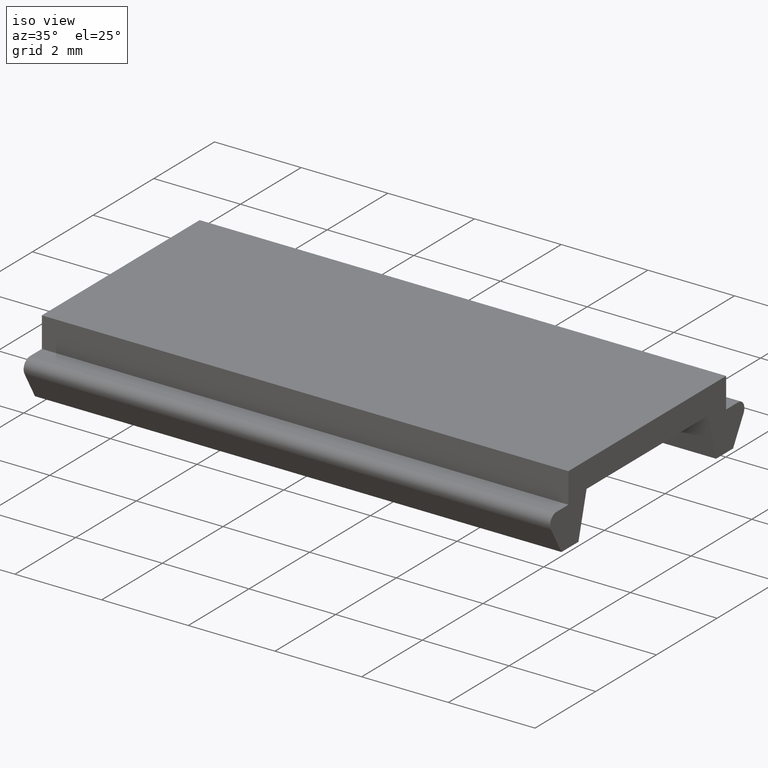
[diagram: clean part render]
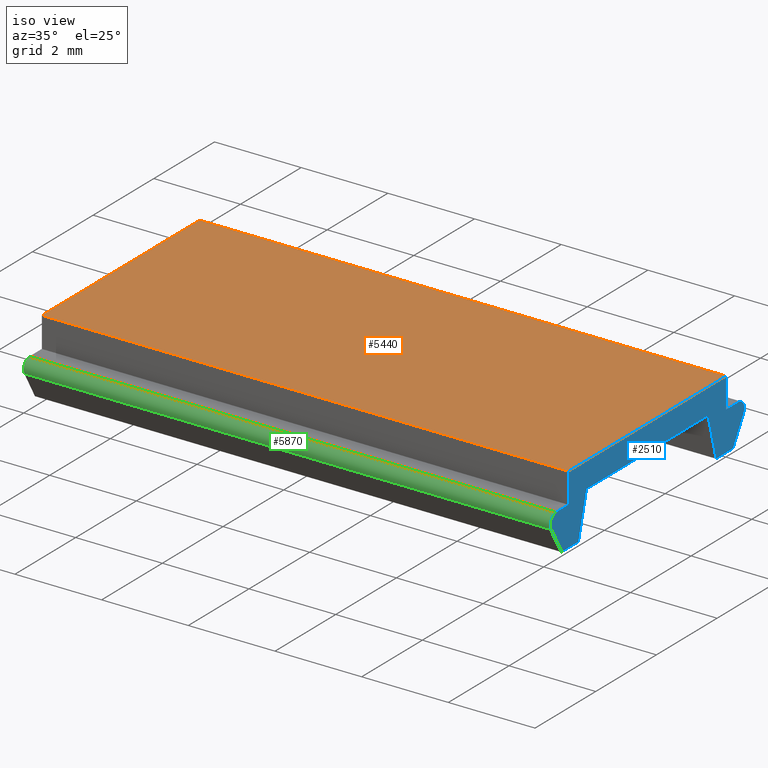
[diagram: same view with three faces highlighted in distinct colors, each labeled with its STEP entity id]
A machine part, iso view with three faces highlighted in distinct colors.
Their STEP definitions:

[orange] entity #5440 — the highlighted planar face has unit normal (-0, -0, -1).
#1020=CARTESIAN_POINT('',(0.598817962288082,-2.,1.59999999999953));
#1030=VERTEX_POINT('',#1020);
#1060=CARTESIAN_POINT('',(3.19881796228819,-2.,1.60000000000147));
#1070=DIRECTION('',(-1.,3.42113882891801E-49,-7.45070671825943E-13));
#1080=VECTOR('',#1070,1.);
#1090=LINE('',#1060,#1080);
#1100=CARTESIAN_POINT('',(5.79881796228829,-2.,1.6000000000034));
#1110=VERTEX_POINT('',#1100);
#1120=EDGE_CURVE('',#1110,#1030,#1090,.T.);
#1410=CARTESIAN_POINT('',(5.79881796228829,10.15,1.6000000000034));
#1420=VERTEX_POINT('',#1410);
#1450=CARTESIAN_POINT('',(3.19881796228819,10.15,1.60000000000147));
#1460=DIRECTION('',(-1.,3.42113882891801E-49,-7.45070671825943E-13));
#1470=VECTOR('',#1460,1.);
#1480=LINE('',#1450,#1470);
#1490=CARTESIAN_POINT('',(0.598817962288082,10.15,1.59999999999953));
#1500=VERTEX_POINT('',#1490);
#1510=EDGE_CURVE('',#1420,#1500,#1480,.T.);
#4430=CARTESIAN_POINT('',(5.79881796228829,-2.23985445467722E-48,
1.6000000000034));
#4440=DIRECTION('',(-3.42113882891801E-49,-1.,0.));
#4450=VECTOR('',#4440,1.);
#4460=LINE('',#4430,#4450);
#4470=EDGE_CURVE('',#1420,#1110,#4460,.T.);
#4930=CARTESIAN_POINT('',(0.598817962288082,-4.60862263639785E-49,
1.59999999999953));
#4940=DIRECTION('',(-3.42113882891801E-49,-1.,0.));
#4950=VECTOR('',#4940,1.);
#4960=LINE('',#4930,#4950);
#4970=EDGE_CURVE('',#1500,#1030,#4960,.T.);
#5330=CARTESIAN_POINT('',(0.798817962288231,-5.29285040218196E-49,
1.59999999999968));
#5340=DIRECTION('',(7.45070671825943E-13,-2.54899020567176E-61,-1.));
#5350=DIRECTION('',(-1.,3.42113882891801E-49,-7.45070671825943E-13));
#5360=AXIS2_PLACEMENT_3D('',#5330,#5340,#5350);
#5370=PLANE('',#5360);
#5380=ORIENTED_EDGE('',*,*,#1120,.F.);
#5390=ORIENTED_EDGE('',*,*,#4970,.T.);
#5400=ORIENTED_EDGE('',*,*,#1510,.T.);
#5410=ORIENTED_EDGE('',*,*,#4470,.F.);
#5420=EDGE_LOOP('',(#5410,#5400,#5390,#5380));
#5430=FACE_OUTER_BOUND('',#5420,.T.);
#5440=ADVANCED_FACE('',(#5430),#5370,.F.);

[blue] entity #2510 — the highlighted planar face has unit normal (-1, 0, 0).
#1300=CARTESIAN_POINT('',(3.25171605650094,10.15,1.30000000000155));
#1310=DIRECTION('',(-3.42113882891801E-49,-1.,0.));
#1320=DIRECTION('',(0.98480775301208,-3.36916404284913E-49,
0.173648177667655));
#1330=AXIS2_PLACEMENT_3D('',#1300,#1310,#1320);
#1340=PLANE('',#1330);
#1350=CARTESIAN_POINT('',(5.79881796228819,10.15,1.74912278860772));
#1360=DIRECTION('',(-6.94277968449342E-13,2.37522131592436E-61,1.));
#1370=VECTOR('',#1360,1.);
#1380=LINE('',#1350,#1370);
#1390=CARTESIAN_POINT('',(5.79881796228878,10.15,0.900000000003431));
#1400=VERTEX_POINT('',#1390);
#1410=CARTESIAN_POINT('',(5.79881796228829,10.15,1.6000000000034));
#1420=VERTEX_POINT('',#1410);
#1430=EDGE_CURVE('',#1400,#1420,#1380,.T.);
#1440=ORIENTED_EDGE('',*,*,#1430,.F.);
#1450=CARTESIAN_POINT('',(3.19881796228819,10.15,1.60000000000147));
#1460=DIRECTION('',(-1.,3.42113882891801E-49,-7.45070671825943E-13));
#1470=VECTOR('',#1460,1.);
#1480=LINE('',#1450,#1470);
#1490=CARTESIAN_POINT('',(0.598817962288082,10.15,1.59999999999953));
#1500=VERTEX_POINT('',#1490);
#1510=EDGE_CURVE('',#1420,#1500,#1480,.T.);
#1520=ORIENTED_EDGE('',*,*,#1510,.F.);
#1530=CARTESIAN_POINT('',(0.598817962288898,10.15,0.832222488919884));
#1540=DIRECTION('',(1.06326059068351E-12,-3.63756209204566E-61,-1.));
#1550=VECTOR('',#1540,1.);
#1560=LINE('',#1530,#1550);
#1570=CARTESIAN_POINT('',(0.598817962288826,10.15,0.900000000002109));
#1580=VERTEX_POINT('',#1570);
#1590=EDGE_CURVE('',#1500,#1580,#1560,.T.);
#1600=ORIENTED_EDGE('',*,*,#1590,.F.);
#1610=CARTESIAN_POINT('',(3.32224684878444,10.15,0.900000000002615));
#1620=DIRECTION('',(1.,-3.42113882891801E-49,1.85934601049098E-13));
#1630=VECTOR('',#1620,1.);
#1640=LINE('',#1610,#1630);
#1650=CARTESIAN_POINT('',(0.197642229317264,10.15,0.900000000002034));
#1660=VERTEX_POINT('',#1650);
#1670=EDGE_CURVE('',#1660,#1580,#1640,.T.);
#1680=ORIENTED_EDGE('',*,*,#1670,.T.);
#1690=CARTESIAN_POINT('',(0.197642395617414,10.15,0.701175470893366));
#1700=DIRECTION('',(-3.42113882891801E-49,-1.,0.));
#1710=DIRECTION('',(0.98480775301208,-3.36916404284913E-49,
0.173648177667655));
#1720=AXIS2_PLACEMENT_3D('',#1690,#1700,#1710);
#1730=CIRCLE('',#1720,0.198824529108738);
#1740=CARTESIAN_POINT('',(0.0256128815321159,10.15,0.601490769671017));
#1750=VERTEX_POINT('',#1740);
#1760=EDGE_CURVE('',#1660,#1750,#1730,.T.);
#1770=ORIENTED_EDGE('',*,*,#1760,.F.);
#1780=CARTESIAN_POINT('',(-0.0423296762644876,10.15,0.719170861624918));
#1790=DIRECTION('',(0.499999586206395,-1.71056799881364E-49,
-0.866025642688156));
#1800=VECTOR('',#1790,1.);
#1810=LINE('',#1780,#1800);
#1820=CARTESIAN_POINT('',(0.372883356121178,10.15,-2.78221889971064E-13)
);
#1830=VERTEX_POINT('',#1820);
#1840=EDGE_CURVE('',#1750,#1830,#1810,.T.);
#1850=ORIENTED_EDGE('',*,*,#1840,.F.);
#1860=CARTESIAN_POINT('',(3.48094113142325,10.15,-2.78221889971064E-13))
;
#1870=DIRECTION('',(1.,-3.42113882891801E-49,-2.77555756156289E-17));
#1880=VECTOR('',#1870,1.);
#1890=LINE('',#1860,#1880);
#1900=CARTESIAN_POINT('',(0.930670673464537,10.15,-2.77999845366139E-13)
);
#1910=VERTEX_POINT('',#1900);
#1920=EDGE_CURVE('',#1830,#1910,#1890,.T.);
#1930=ORIENTED_EDGE('',*,*,#1920,.F.);
#1940=CARTESIAN_POINT('',(1.18117862033904,10.15,0.934908385437702));
#1950=DIRECTION('',(0.258819045101854,-8.85455884861435E-50,
0.965925826289247));
#1960=VECTOR('',#1950,1.);
#1970=LINE('',#1940,#1960);
#1980=CARTESIAN_POINT('',(1.198619865895,10.15,1.00000000000001));
#1990=VERTEX_POINT('',#1980);
#2000=EDGE_CURVE('',#1910,#1990,#1970,.T.);
#2010=ORIENTED_EDGE('',*,*,#2000,.F.);
#2020=CARTESIAN_POINT('',(3.3046141507137,10.15,1.00000000000157));
#2030=DIRECTION('',(1.,-3.42113882891801E-49,7.41434691420295E-13));
#2040=VECTOR('',#2030,1.);
#2050=LINE('',#2020,#2040);
#2060=CARTESIAN_POINT('',(5.19901605868237,10.15,1.00000000000297));
#2070=VERTEX_POINT('',#2060);
#2080=EDGE_CURVE('',#1990,#2070,#2050,.T.);
#2090=ORIENTED_EDGE('',*,*,#2080,.F.);
#2100=CARTESIAN_POINT('',(5.03440517284383,10.15,1.61433618942948));
#2110=DIRECTION('',(0.258819045103242,-8.85455884866183E-50,
-0.965925826288875));
#2120=VECTOR('',#2110,1.);
#2130=LINE('',#2100,#2120);
#2140=CARTESIAN_POINT('',(5.46696525111425,10.15,3.12283532366564E-12));
#2150=VERTEX_POINT('',#2140);
#2160=EDGE_CURVE('',#2070,#2150,#2130,.T.);
#2170=ORIENTED_EDGE('',*,*,#2160,.F.);
#2180=CARTESIAN_POINT('',(3.48094113142307,10.15,7.54285522930331E-13));
#2190=DIRECTION('',(1.,-3.42113882891801E-49,1.19254606190111E-12));
#2200=VECTOR('',#2190,1.);
#2210=LINE('',#2180,#2200);
#2220=CARTESIAN_POINT('',(6.02475256845767,10.15,3.78808096002103E-12));
#2230=VERTEX_POINT('',#2220);
#2240=EDGE_CURVE('',#2150,#2230,#2210,.T.);
#2250=ORIENTED_EDGE('',*,*,#2240,.F.);
#2260=CARTESIAN_POINT('',(7.17467322075392,10.15,1.99172319222589));
#2270=DIRECTION('',(0.499999586205083,-1.71056799880915E-49,
0.866025642688914));
#2280=VECTOR('',#2270,1.);
#2290=LINE('',#2260,#2280);
#2300=CARTESIAN_POINT('',(6.37202304304583,10.15,0.601490769675634));
#2310=VERTEX_POINT('',#2300);
#2320=EDGE_CURVE('',#2230,#2310,#2290,.T.);
#2330=ORIENTED_EDGE('',*,*,#2320,.F.);
#2340=CARTESIAN_POINT('',(6.19999352896042,10.15,0.70117547089784));
#2350=DIRECTION('',(-3.42113882891801E-49,-1.,0.));
#2360=DIRECTION('',(0.98480775301208,-3.36916404284913E-49,
0.173648177667655));
#2370=AXIS2_PLACEMENT_3D('',#2340,#2350,#2360);
#2380=CIRCLE('',#2370,0.198824529108709);
#2390=CARTESIAN_POINT('',(6.1999936952603,10.15,0.900000000003953));
#2400=VERTEX_POINT('',#2390);
#2410=EDGE_CURVE('',#2310,#2400,#2380,.T.);
#2420=ORIENTED_EDGE('',*,*,#2410,.F.);
#2430=CARTESIAN_POINT('',(3.32224684878486,10.15,0.900000000000214));
#2440=DIRECTION('',(-1.,3.42113882891801E-49,-1.29901644996266E-12));
#2450=VECTOR('',#2440,1.);
#2460=LINE('',#2430,#2450);
#2470=EDGE_CURVE('',#2400,#1400,#2460,.T.);
#2480=ORIENTED_EDGE('',*,*,#2470,.F.);
#2490=EDGE_LOOP('',(#2480,#2420,#2330,#2250,#2170,#2090,#2010,#1930,
#1850,#1770,#1680,#1600,#1520,#1440));
#2500=FACE_OUTER_BOUND('',#2490,.T.);
#2510=ADVANCED_FACE('',(#2500),#1340,.F.);

[green] entity #5870 — the highlighted cylindrical surface (edge-blend (fillet) strip) has radius 0.1988 mm, axis along (-1, 0, 0).
#100=CARTESIAN_POINT('',(6.1999936952603,-2.,0.900000000003953));
#110=VERTEX_POINT('',#100);
#160=CARTESIAN_POINT('',(6.19999352896042,-2.,0.70117547089784));
#170=DIRECTION('',(-3.42113882891801E-49,-1.,0.));
#180=DIRECTION('',(0.98480775301208,-3.36916404284913E-49,
0.173648177667655));
#190=AXIS2_PLACEMENT_3D('',#160,#170,#180);
#200=CIRCLE('',#190,0.198824529108709);
#210=CARTESIAN_POINT('',(6.37202304304583,-2.,0.601490769675634));
#220=VERTEX_POINT('',#210);
#230=EDGE_CURVE('',#220,#110,#200,.T.);
#2300=CARTESIAN_POINT('',(6.37202304304583,10.15,0.601490769675634));
#2310=VERTEX_POINT('',#2300);
#2340=CARTESIAN_POINT('',(6.19999352896042,10.15,0.70117547089784));
#2350=DIRECTION('',(-3.42113882891801E-49,-1.,0.));
#2360=DIRECTION('',(0.98480775301208,-3.36916404284913E-49,
0.173648177667655));
#2370=AXIS2_PLACEMENT_3D('',#2340,#2350,#2360);
#2380=CIRCLE('',#2370,0.198824529108709);
#2390=CARTESIAN_POINT('',(6.1999936952603,10.15,0.900000000003953));
#2400=VERTEX_POINT('',#2390);
#2410=EDGE_CURVE('',#2310,#2400,#2380,.T.);
#3960=CARTESIAN_POINT('',(6.1999936952603,-2.37710224240624E-48,
0.900000000003954));
#3970=DIRECTION('',(3.42113882891801E-49,1.,0.));
#3980=VECTOR('',#3970,1.);
#3990=LINE('',#3960,#3980);
#4000=EDGE_CURVE('',#110,#2400,#3990,.T.);
#5580=CARTESIAN_POINT('',(6.37202304304583,-2.43595587054849E-48,
0.601490769675638));
#5590=DIRECTION('',(3.42113882891801E-49,1.,0.));
#5600=VECTOR('',#5590,1.);
#5610=LINE('',#5580,#5600);
#5620=EDGE_CURVE('',#220,#2310,#5610,.T.);
#5760=CARTESIAN_POINT('',(6.19999352896042,-2.37710218551274E-48,
0.70117547089784));
#5770=DIRECTION('',(-3.42113882891801E-49,-1.,0.));
#5780=DIRECTION('',(0.98480775301208,-3.36916404284913E-49,
0.173648177667655));
#5790=AXIS2_PLACEMENT_3D('',#5760,#5770,#5780);
#5800=CYLINDRICAL_SURFACE('',#5790,0.198824529108709);
#5810=ORIENTED_EDGE('',*,*,#230,.F.);
#5820=ORIENTED_EDGE('',*,*,#4000,.F.);
#5830=ORIENTED_EDGE('',*,*,#2410,.T.);
#5840=ORIENTED_EDGE('',*,*,#5620,.T.);
#5850=EDGE_LOOP('',(#5840,#5830,#5820,#5810));
#5860=FACE_OUTER_BOUND('',#5850,.T.);
#5870=ADVANCED_FACE('',(#5860),#5800,.T.);